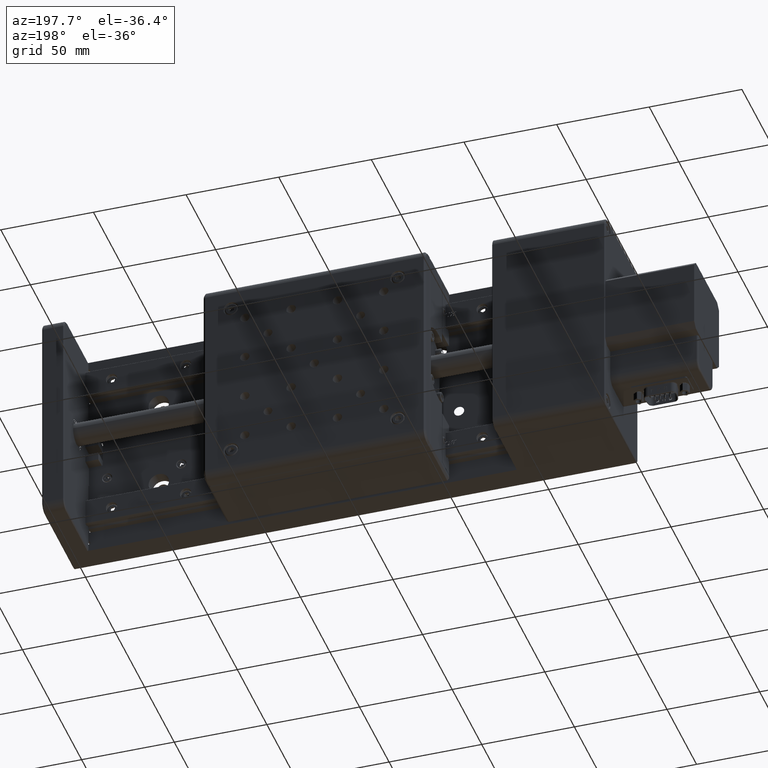
[diagram: clean part render]
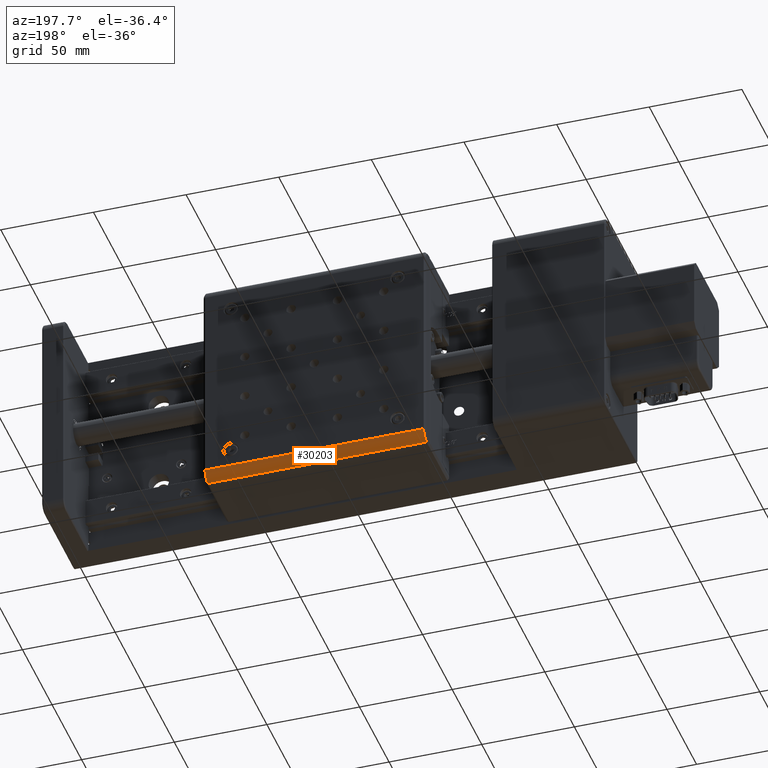
[diagram: same view with one face highlighted and labeled with its STEP entity id]
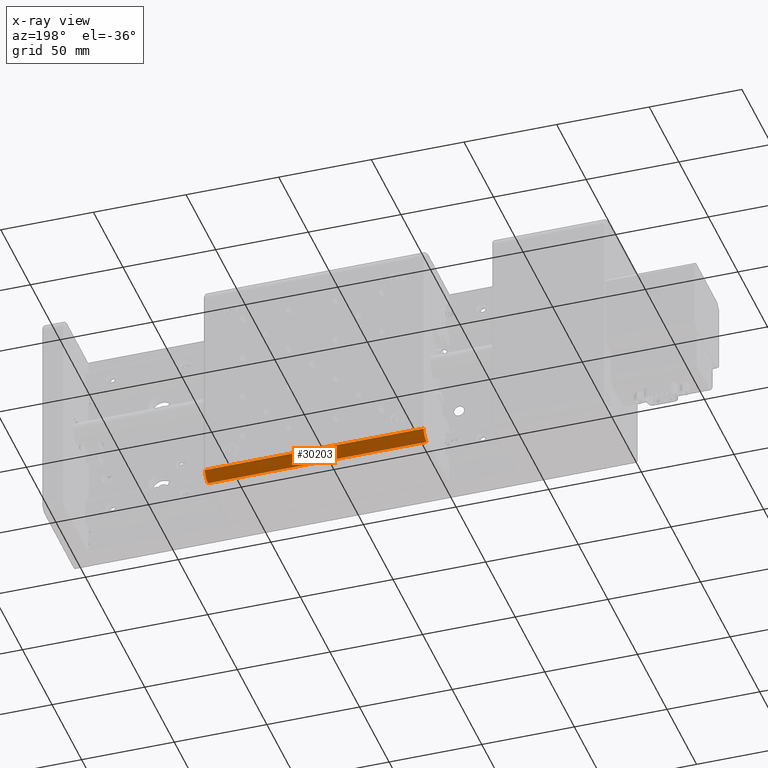
[diagram: x-ray of the same camera — body ghosted, the highlighted face saturated]
A machine part, auxiliary view. The second image highlights one B-rep face of the part: STEP entity #30203.
The next image is the same camera in x-ray: the body ghosted, the highlighted face saturated — about 0% of this face is hidden behind the body in this view.
In plain terms, the highlighted cylindrical surface (edge-blend (fillet) strip) has radius 5 mm, axis along (-1, -0, 0).
Its self-contained STEP definition (entity closure, byte-faithful):
#502 = VERTEX_POINT ( 'NONE', #10302 ) ;
#521 = ORIENTED_EDGE ( 'NONE', *, *, #19720, .F. ) ;
#1324 = EDGE_CURVE ( 'NONE', #18841, #502, #28360, .T. ) ;
#2019 = EDGE_CURVE ( 'NONE', #18841, #10620, #22187, .T. ) ;
#2027 = DIRECTION ( 'NONE',  ( 0.0000000000000000000, 1.000000000000000000, 0.0000000000000000000 ) ) ;
#2138 = CIRCLE ( 'NONE', #16969, 4.999999999999997300 ) ;
#3370 = DIRECTION ( 'NONE',  ( 1.000000000000000000, 1.496908828207086500E-025, -3.201528549886529400E-016 ) ) ;
#5087 = FACE_OUTER_BOUND ( 'NONE', #25478, .T. ) ;
#6470 = CYLINDRICAL_SURFACE ( 'NONE', #11978, 4.999999999999997300 ) ;
#6528 = ORIENTED_EDGE ( 'NONE', *, *, #1324, .T. ) ;
#8744 = CARTESIAN_POINT ( 'NONE',  ( 408.6596945975858300, 50.99999999999835900, 371.9433306992480700 ) ) ;
#10302 = CARTESIAN_POINT ( 'NONE',  ( 467.6596945975858300, 50.99999999999835900, 366.9433306992480100 ) ) ;
#10620 = VERTEX_POINT ( 'NONE', #14807 ) ;
#10743 = EDGE_CURVE ( 'NONE', #22072, #10620, #2138, .T. ) ;
#11475 = DIRECTION ( 'NONE',  ( 0.0000000000000000000, 1.000000000000000000, 0.0000000000000000000 ) ) ;
#11978 = AXIS2_PLACEMENT_3D ( 'NONE', #8744, #17326, #11475 ) ;
#12712 = CARTESIAN_POINT ( 'NONE',  ( 349.6596945975857700, 50.99999999999835900, 371.9433306992480700 ) ) ;
#13899 = ORIENTED_EDGE ( 'NONE', *, *, #10743, .T. ) ;
#14807 = CARTESIAN_POINT ( 'NONE',  ( 349.6596945975857700, 55.99999999999836600, 371.9433306992480700 ) ) ;
#15716 = DIRECTION ( 'NONE',  ( 0.0000000000000000000, -1.000000000000000000, 0.0000000000000000000 ) ) ;
#16969 = AXIS2_PLACEMENT_3D ( 'NONE', #12712, #3370, #15716 ) ;
#17326 = DIRECTION ( 'NONE',  ( -1.000000000000000000, -1.496908828207086500E-025, 3.201528549886529400E-016 ) ) ;
#18196 = ORIENTED_EDGE ( 'NONE', *, *, #2019, .F. ) ;
#18841 = VERTEX_POINT ( 'NONE', #29926 ) ;
#19720 = EDGE_CURVE ( 'NONE', #22072, #502, #22467, .T. ) ;
#19856 = CARTESIAN_POINT ( 'NONE',  ( 467.6596945975858300, 50.99999999999835900, 371.9433306992480100 ) ) ;
#20026 = AXIS2_PLACEMENT_3D ( 'NONE', #19856, #22584, #2027 ) ;
#22072 = VERTEX_POINT ( 'NONE', #27140 ) ;
#22187 = LINE ( 'NONE', #28062, #27317 ) ;
#22467 = LINE ( 'NONE', #33277, #35576 ) ;
#22584 = DIRECTION ( 'NONE',  ( -1.000000000000000000, -1.496908828207086500E-025, 3.201528549886529400E-016 ) ) ;
#25478 = EDGE_LOOP ( 'NONE', ( #18196, #6528, #521, #13899 ) ) ;
#27140 = CARTESIAN_POINT ( 'NONE',  ( 349.6596945975857700, 50.99999999999835900, 366.9433306992480700 ) ) ;
#27317 = VECTOR ( 'NONE', #27675, 1000.000000000000000 ) ;
#27675 = DIRECTION ( 'NONE',  ( -1.000000000000000000, -1.496908828207086500E-025, 3.201528549886529400E-016 ) ) ;
#28062 = CARTESIAN_POINT ( 'NONE',  ( 408.6596945975858300, 55.99999999999836600, 371.9433306992480700 ) ) ;
#28360 = CIRCLE ( 'NONE', #20026, 4.999999999999997300 ) ;
#29926 = CARTESIAN_POINT ( 'NONE',  ( 467.6596945975858300, 55.99999999999836600, 371.9433306992480100 ) ) ;
#30203 = ADVANCED_FACE ( 'NONE', ( #5087 ), #6470, .T. ) ;
#33277 = CARTESIAN_POINT ( 'NONE',  ( 468.6596945975858300, 50.99999999999835900, 366.9433306992480100 ) ) ;
#35576 = VECTOR ( 'NONE', #36314, 1000.000000000000000 ) ;
#36314 = DIRECTION ( 'NONE',  ( 1.000000000000000000, 1.496908828207086500E-025, -3.201528549886529400E-016 ) ) ;